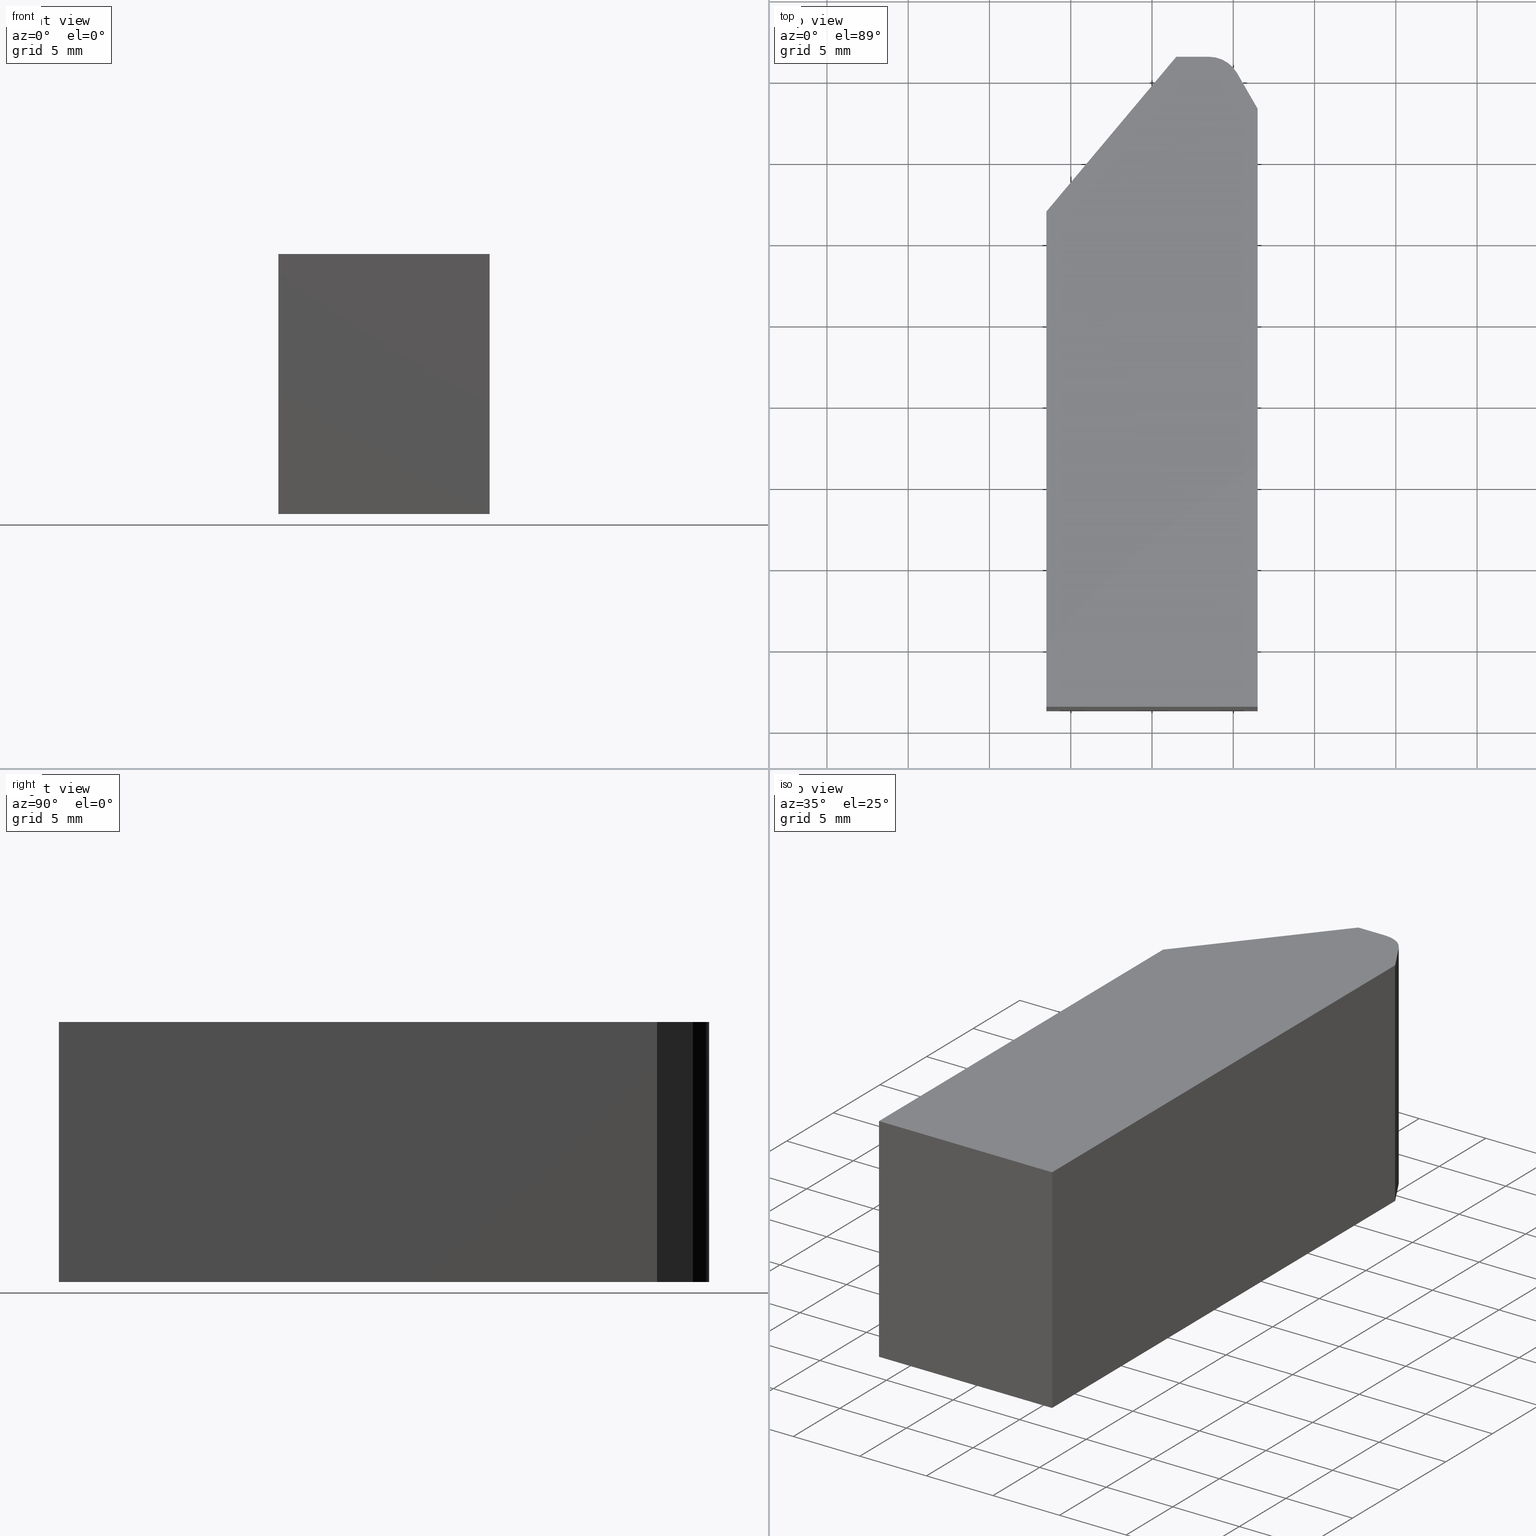
[diagram: canonical four-view strip — front | top / right | iso, engineering-drawing reading convention]
A machine part, canonical four-view strip (front | top / right | iso — engineering-drawing reading convention). The complete STEP part file that produces these views, byte-faithful:
ISO-10303-21;
HEADER;
/* Generated by software containing ST-Developer
 * from STEP Tools, Inc. (www.steptools.com) 
 */

FILE_DESCRIPTION(
/* description */ (''),
/* implementation_level */ '2;1');

FILE_NAME(
/* name */ 'E_3_01_06_07_00_WKZ-0125.stp',
/* time_stamp */ '2025-11-24T11:46:10+01:00',
/* author */ ('d.fischer'),
/* organization */ (''),
/* preprocessor_version */ 'ST-DEVELOPER v20',
/* originating_system */ 'Autodesk Inventor 2025',
/* authorisation */ '');

FILE_SCHEMA (('AUTOMOTIVE_DESIGN { 1 0 10303 214 3 1 1 }'));
ENDSEC;

DATA;
#10=MECHANICAL_DESIGN_GEOMETRIC_PRESENTATION_REPRESENTATION('',(#14,#15),
#294);
#11=SHAPE_REPRESENTATION_RELATIONSHIP('SRR','None',#301,#12);
#12=ADVANCED_BREP_SHAPE_REPRESENTATION('',(#13),#293);
#13=MANIFOLD_SOLID_BREP('Volumenk\X\F6rper1',#169);
#14=STYLED_ITEM('',(#311),#167);
#15=STYLED_ITEM('',(#310),#13);
#16=CYLINDRICAL_SURFACE('',#197,2.00000000000001);
#17=FACE_OUTER_BOUND('',#26,.T.);
#18=FACE_OUTER_BOUND('',#27,.T.);
#19=FACE_OUTER_BOUND('',#28,.T.);
#20=FACE_OUTER_BOUND('',#29,.T.);
#21=FACE_OUTER_BOUND('',#30,.T.);
#22=FACE_OUTER_BOUND('',#31,.T.);
#23=FACE_OUTER_BOUND('',#32,.T.);
#24=FACE_OUTER_BOUND('',#33,.T.);
#25=FACE_OUTER_BOUND('',#34,.T.);
#26=EDGE_LOOP('',(#110,#111,#112,#113,#114,#115,#116));
#27=EDGE_LOOP('',(#117,#118,#119,#120));
#28=EDGE_LOOP('',(#121,#122,#123,#124));
#29=EDGE_LOOP('',(#125,#126,#127,#128));
#30=EDGE_LOOP('',(#129,#130,#131,#132));
#31=EDGE_LOOP('',(#133,#134,#135,#136));
#32=EDGE_LOOP('',(#137,#138,#139,#140));
#33=EDGE_LOOP('',(#141,#142,#143,#144));
#34=EDGE_LOOP('',(#145,#146,#147,#148,#149,#150,#151));
#35=CIRCLE('',#193,2.00000000000001);
#36=CIRCLE('',#198,2.00000000000001);
#37=LINE('',#250,#56);
#38=LINE('',#252,#57);
#39=LINE('',#254,#58);
#40=LINE('',#256,#59);
#41=LINE('',#260,#60);
#42=LINE('',#261,#61);
#43=LINE('',#265,#62);
#44=LINE('',#266,#63);
#45=LINE('',#267,#64);
#46=LINE('',#270,#65);
#47=LINE('',#271,#66);
#48=LINE('',#274,#67);
#49=LINE('',#275,#68);
#50=LINE('',#279,#69);
#51=LINE('',#282,#70);
#52=LINE('',#283,#71);
#53=LINE('',#286,#72);
#54=LINE('',#287,#73);
#55=LINE('',#289,#74);
#56=VECTOR('',#207,10.);
#57=VECTOR('',#208,10.);
#58=VECTOR('',#209,10.);
#59=VECTOR('',#210,10.);
#60=VECTOR('',#213,10.);
#61=VECTOR('',#214,10.);
#62=VECTOR('',#217,10.);
#63=VECTOR('',#218,10.);
#64=VECTOR('',#219,10.);
#65=VECTOR('',#222,10.);
#66=VECTOR('',#223,10.);
#67=VECTOR('',#226,10.);
#68=VECTOR('',#227,10.);
#69=VECTOR('',#232,10.);
#70=VECTOR('',#235,10.);
#71=VECTOR('',#236,10.);
#72=VECTOR('',#239,10.);
#73=VECTOR('',#240,10.);
#74=VECTOR('',#243,10.);
#75=VERTEX_POINT('',#248);
#76=VERTEX_POINT('',#249);
#77=VERTEX_POINT('',#251);
#78=VERTEX_POINT('',#253);
#79=VERTEX_POINT('',#255);
#80=VERTEX_POINT('',#257);
#81=VERTEX_POINT('',#259);
#82=VERTEX_POINT('',#263);
#83=VERTEX_POINT('',#264);
#84=VERTEX_POINT('',#269);
#85=VERTEX_POINT('',#273);
#86=VERTEX_POINT('',#277);
#87=VERTEX_POINT('',#281);
#88=VERTEX_POINT('',#285);
#89=EDGE_CURVE('',#75,#76,#37,.T.);
#90=EDGE_CURVE('',#77,#75,#38,.T.);
#91=EDGE_CURVE('',#78,#77,#39,.T.);
#92=EDGE_CURVE('',#79,#78,#40,.T.);
#93=EDGE_CURVE('',#80,#79,#35,.T.);
#94=EDGE_CURVE('',#81,#80,#41,.T.);
#95=EDGE_CURVE('',#76,#81,#42,.T.);
#96=EDGE_CURVE('',#82,#83,#43,.T.);
#97=EDGE_CURVE('',#83,#77,#44,.T.);
#98=EDGE_CURVE('',#82,#75,#45,.T.);
#99=EDGE_CURVE('',#83,#84,#46,.T.);
#100=EDGE_CURVE('',#84,#78,#47,.T.);
#101=EDGE_CURVE('',#84,#85,#48,.T.);
#102=EDGE_CURVE('',#85,#79,#49,.T.);
#103=EDGE_CURVE('',#85,#86,#36,.T.);
#104=EDGE_CURVE('',#86,#80,#50,.T.);
#105=EDGE_CURVE('',#86,#87,#51,.T.);
#106=EDGE_CURVE('',#87,#81,#52,.T.);
#107=EDGE_CURVE('',#87,#88,#53,.T.);
#108=EDGE_CURVE('',#88,#76,#54,.T.);
#109=EDGE_CURVE('',#88,#82,#55,.T.);
#110=ORIENTED_EDGE('',*,*,#89,.F.);
#111=ORIENTED_EDGE('',*,*,#90,.F.);
#112=ORIENTED_EDGE('',*,*,#91,.F.);
#113=ORIENTED_EDGE('',*,*,#92,.F.);
#114=ORIENTED_EDGE('',*,*,#93,.F.);
#115=ORIENTED_EDGE('',*,*,#94,.F.);
#116=ORIENTED_EDGE('',*,*,#95,.F.);
#117=ORIENTED_EDGE('',*,*,#96,.T.);
#118=ORIENTED_EDGE('',*,*,#97,.T.);
#119=ORIENTED_EDGE('',*,*,#90,.T.);
#120=ORIENTED_EDGE('',*,*,#98,.F.);
#121=ORIENTED_EDGE('',*,*,#99,.T.);
#122=ORIENTED_EDGE('',*,*,#100,.T.);
#123=ORIENTED_EDGE('',*,*,#91,.T.);
#124=ORIENTED_EDGE('',*,*,#97,.F.);
#125=ORIENTED_EDGE('',*,*,#101,.T.);
#126=ORIENTED_EDGE('',*,*,#102,.T.);
#127=ORIENTED_EDGE('',*,*,#92,.T.);
#128=ORIENTED_EDGE('',*,*,#100,.F.);
#129=ORIENTED_EDGE('',*,*,#103,.T.);
#130=ORIENTED_EDGE('',*,*,#104,.T.);
#131=ORIENTED_EDGE('',*,*,#93,.T.);
#132=ORIENTED_EDGE('',*,*,#102,.F.);
#133=ORIENTED_EDGE('',*,*,#105,.T.);
#134=ORIENTED_EDGE('',*,*,#106,.T.);
#135=ORIENTED_EDGE('',*,*,#94,.T.);
#136=ORIENTED_EDGE('',*,*,#104,.F.);
#137=ORIENTED_EDGE('',*,*,#107,.T.);
#138=ORIENTED_EDGE('',*,*,#108,.T.);
#139=ORIENTED_EDGE('',*,*,#95,.T.);
#140=ORIENTED_EDGE('',*,*,#106,.F.);
#141=ORIENTED_EDGE('',*,*,#109,.T.);
#142=ORIENTED_EDGE('',*,*,#98,.T.);
#143=ORIENTED_EDGE('',*,*,#89,.T.);
#144=ORIENTED_EDGE('',*,*,#108,.F.);
#145=ORIENTED_EDGE('',*,*,#96,.F.);
#146=ORIENTED_EDGE('',*,*,#109,.F.);
#147=ORIENTED_EDGE('',*,*,#107,.F.);
#148=ORIENTED_EDGE('',*,*,#105,.F.);
#149=ORIENTED_EDGE('',*,*,#103,.F.);
#150=ORIENTED_EDGE('',*,*,#101,.F.);
#151=ORIENTED_EDGE('',*,*,#99,.F.);
#152=PLANE('',#192);
#153=PLANE('',#194);
#154=PLANE('',#195);
#155=PLANE('',#196);
#156=PLANE('',#199);
#157=PLANE('',#200);
#158=PLANE('',#201);
#159=PLANE('',#202);
#160=ADVANCED_FACE('',(#17),#152,.F.);
#161=ADVANCED_FACE('',(#18),#153,.T.);
#162=ADVANCED_FACE('',(#19),#154,.T.);
#163=ADVANCED_FACE('',(#20),#155,.T.);
#164=ADVANCED_FACE('',(#21),#16,.T.);
#165=ADVANCED_FACE('',(#22),#156,.T.);
#166=ADVANCED_FACE('',(#23),#157,.T.);
#167=ADVANCED_FACE('',(#24),#158,.T.);
#168=ADVANCED_FACE('',(#25),#159,.T.);
#169=CLOSED_SHELL('',(#160,#161,#162,#163,#164,#165,#166,#167,#168));
#170=DERIVED_UNIT_ELEMENT(#173,1.);
#171=DERIVED_UNIT_ELEMENT(#296,-3.);
#172=DIMENSIONAL_EXPONENTS(0.,1.,0.,0.,0.,0.,0.);
#173=(
CONVERSION_BASED_UNIT('gram',#175)
MASS_UNIT()
NAMED_UNIT(#172)
);
#174=(
MASS_UNIT()
NAMED_UNIT(*)
SI_UNIT(.KILO.,.GRAM.)
);
#175=MASS_MEASURE_WITH_UNIT(MASS_MEASURE(0.001),#174);
#176=DERIVED_UNIT((#170,#171));
#177=MEASURE_REPRESENTATION_ITEM('density measure',
POSITIVE_RATIO_MEASURE(8.03),#176);
#178=PROPERTY_DEFINITION_REPRESENTATION(#183,#180);
#179=PROPERTY_DEFINITION_REPRESENTATION(#184,#181);
#180=REPRESENTATION('material name',(#182),#293);
#181=REPRESENTATION('density',(#177),#293);
#182=DESCRIPTIVE_REPRESENTATION_ITEM('1.4301','1.4301');
#183=PROPERTY_DEFINITION('material property','material name',#303);
#184=PROPERTY_DEFINITION('material property','density of part',#303);
#185=DATE_TIME_ROLE('creation_date');
#186=APPLIED_DATE_AND_TIME_ASSIGNMENT(#187,#185,(#303));
#187=DATE_AND_TIME(#188,#189);
#188=CALENDAR_DATE(2011,18,10);
#189=LOCAL_TIME(0,0,0.,#190);
#190=COORDINATED_UNIVERSAL_TIME_OFFSET(0,0,.BEHIND.);
#191=AXIS2_PLACEMENT_3D('',#246,#203,#204);
#192=AXIS2_PLACEMENT_3D('',#247,#205,#206);
#193=AXIS2_PLACEMENT_3D('',#258,#211,#212);
#194=AXIS2_PLACEMENT_3D('',#262,#215,#216);
#195=AXIS2_PLACEMENT_3D('',#268,#220,#221);
#196=AXIS2_PLACEMENT_3D('',#272,#224,#225);
#197=AXIS2_PLACEMENT_3D('',#276,#228,#229);
#198=AXIS2_PLACEMENT_3D('',#278,#230,#231);
#199=AXIS2_PLACEMENT_3D('',#280,#233,#234);
#200=AXIS2_PLACEMENT_3D('',#284,#237,#238);
#201=AXIS2_PLACEMENT_3D('',#288,#241,#242);
#202=AXIS2_PLACEMENT_3D('',#290,#244,#245);
#203=DIRECTION('axis',(0.,0.,1.));
#204=DIRECTION('refdir',(1.,0.,0.));
#205=DIRECTION('center_axis',(0.,0.,1.));
#206=DIRECTION('ref_axis',(1.,0.,0.));
#207=DIRECTION('',(1.,-3.00545187904787E-15,0.));
#208=DIRECTION('',(2.18619565072233E-16,-1.,0.));
#209=DIRECTION('',(-0.642787609686539,-0.766044443118978,0.));
#210=DIRECTION('',(-1.,0.,0.));
#211=DIRECTION('center_axis',(0.,0.,1.));
#212=DIRECTION('ref_axis',(-0.866025403784439,-0.5,0.));
#213=DIRECTION('',(-0.499999999999999,0.866025403784439,0.));
#214=DIRECTION('',(1.50853749567614E-16,1.,0.));
#215=DIRECTION('center_axis',(-1.,-2.18619565072233E-16,0.));
#216=DIRECTION('ref_axis',(0.,0.,1.));
#217=DIRECTION('',(-2.18619565072233E-16,1.,0.));
#218=DIRECTION('',(0.,0.,-1.));
#219=DIRECTION('',(0.,0.,-1.));
#220=DIRECTION('center_axis',(-0.766044443118978,0.642787609686539,0.));
#221=DIRECTION('ref_axis',(0.,0.,1.));
#222=DIRECTION('',(0.642787609686539,0.766044443118978,0.));
#223=DIRECTION('',(0.,0.,-1.));
#224=DIRECTION('center_axis',(0.,1.,0.));
#225=DIRECTION('ref_axis',(0.,0.,1.));
#226=DIRECTION('',(1.,0.,0.));
#227=DIRECTION('',(0.,0.,-1.));
#228=DIRECTION('center_axis',(0.,0.,1.));
#229=DIRECTION('ref_axis',(-0.866025403784439,-0.5,0.));
#230=DIRECTION('center_axis',(0.,0.,-1.));
#231=DIRECTION('ref_axis',(-0.866025403784439,-0.5,0.));
#232=DIRECTION('',(0.,0.,-1.));
#233=DIRECTION('center_axis',(0.866025403784439,0.499999999999999,0.));
#234=DIRECTION('ref_axis',(0.,0.,-1.));
#235=DIRECTION('',(0.499999999999999,-0.866025403784439,0.));
#236=DIRECTION('',(0.,0.,-1.));
#237=DIRECTION('center_axis',(1.,-1.50853749567614E-16,0.));
#238=DIRECTION('ref_axis',(0.,0.,-1.));
#239=DIRECTION('',(-1.50853749567614E-16,-1.,0.));
#240=DIRECTION('',(0.,0.,-1.));
#241=DIRECTION('center_axis',(3.85414216364287E-16,-1.,0.));
#242=DIRECTION('ref_axis',(0.,0.,-1.));
#243=DIRECTION('',(-1.,-3.85414216364287E-16,0.));
#244=DIRECTION('center_axis',(0.,0.,1.));
#245=DIRECTION('ref_axis',(1.,0.,0.));
#246=CARTESIAN_POINT('',(0.,0.,0.));
#247=CARTESIAN_POINT('Origin',(0.394768987886831,4.85101726977802,-8.));
#248=CARTESIAN_POINT('',(-6.5,-13.6599409950749,-8.));
#249=CARTESIAN_POINT('',(6.5,-13.6599409950749,-8.));
#250=CARTESIAN_POINT('',(6.5,-13.6599409950749,-8.));
#251=CARTESIAN_POINT('',(-6.5,16.8100590049251,-8.));
#252=CARTESIAN_POINT('',(-6.5,-13.6599409950749,-8.));
#253=CARTESIAN_POINT('',(1.49661948511947,26.3400590049251,-8.));
#254=CARTESIAN_POINT('',(-6.5,16.8100590049251,-8.));
#255=CARTESIAN_POINT('',(3.49661948511947,26.3400590049251,-8.));
#256=CARTESIAN_POINT('',(1.49661948511947,26.3400590049251,-8.));
#257=CARTESIAN_POINT('',(5.22867029268835,25.3400590049251,-8.));
#258=CARTESIAN_POINT('Origin',(3.49661948511947,24.3400590049251,-8.));
#259=CARTESIAN_POINT('',(6.5,23.1380513586897,-8.));
#260=CARTESIAN_POINT('',(5.22867029268835,25.3400590049251,-8.));
#261=CARTESIAN_POINT('',(6.5,23.1380513586897,-8.));
#262=CARTESIAN_POINT('Origin',(-6.5,-13.6599409950749,0.));
#263=CARTESIAN_POINT('',(-6.5,-13.6599409950749,8.));
#264=CARTESIAN_POINT('',(-6.5,16.8100590049251,8.));
#265=CARTESIAN_POINT('',(-6.5,-13.6599409950749,8.));
#266=CARTESIAN_POINT('',(-6.5,16.8100590049251,0.));
#267=CARTESIAN_POINT('',(-6.5,-13.6599409950749,0.));
#268=CARTESIAN_POINT('Origin',(-6.5,16.8100590049251,0.));
#269=CARTESIAN_POINT('',(1.49661948511947,26.3400590049251,8.));
#270=CARTESIAN_POINT('',(-6.5,16.8100590049251,8.));
#271=CARTESIAN_POINT('',(1.49661948511947,26.3400590049251,0.));
#272=CARTESIAN_POINT('Origin',(1.49661948511947,26.3400590049251,0.));
#273=CARTESIAN_POINT('',(3.49661948511947,26.3400590049251,8.));
#274=CARTESIAN_POINT('',(1.49661948511947,26.3400590049251,8.));
#275=CARTESIAN_POINT('',(3.49661948511947,26.3400590049251,0.));
#276=CARTESIAN_POINT('Origin',(3.49661948511947,24.3400590049251,0.));
#277=CARTESIAN_POINT('',(5.22867029268835,25.3400590049251,8.));
#278=CARTESIAN_POINT('Origin',(3.49661948511947,24.3400590049251,8.));
#279=CARTESIAN_POINT('',(5.22867029268835,25.3400590049251,0.));
#280=CARTESIAN_POINT('Origin',(5.22867029268835,25.3400590049251,0.));
#281=CARTESIAN_POINT('',(6.5,23.1380513586897,8.));
#282=CARTESIAN_POINT('',(5.22867029268835,25.3400590049251,8.));
#283=CARTESIAN_POINT('',(6.5,23.1380513586897,0.));
#284=CARTESIAN_POINT('Origin',(6.5,23.1380513586897,0.));
#285=CARTESIAN_POINT('',(6.5,-13.6599409950749,8.));
#286=CARTESIAN_POINT('',(6.5,23.1380513586897,8.));
#287=CARTESIAN_POINT('',(6.5,-13.6599409950749,0.));
#288=CARTESIAN_POINT('Origin',(5.02238788800455,-13.6599409950749,0.));
#289=CARTESIAN_POINT('',(5.02238788800455,-13.6599409950749,8.));
#290=CARTESIAN_POINT('Origin',(0.394768987886831,4.85101726977802,8.));
#291=UNCERTAINTY_MEASURE_WITH_UNIT(LENGTH_MEASURE(0.01),#295,
'DISTANCE_ACCURACY_VALUE',
'Maximum model space distance between geometric entities at asserted c
onnectivities');
#292=UNCERTAINTY_MEASURE_WITH_UNIT(LENGTH_MEASURE(0.01),#295,
'DISTANCE_ACCURACY_VALUE',
'Maximum model space distance between geometric entities at asserted c
onnectivities');
#293=(
GEOMETRIC_REPRESENTATION_CONTEXT(3)
GLOBAL_UNCERTAINTY_ASSIGNED_CONTEXT((#291))
GLOBAL_UNIT_ASSIGNED_CONTEXT((#295,#297,#298))
REPRESENTATION_CONTEXT('','3D')
);
#294=(
GEOMETRIC_REPRESENTATION_CONTEXT(3)
GLOBAL_UNCERTAINTY_ASSIGNED_CONTEXT((#292))
GLOBAL_UNIT_ASSIGNED_CONTEXT((#295,#297,#298))
REPRESENTATION_CONTEXT('','3D')
);
#295=(
LENGTH_UNIT()
NAMED_UNIT(*)
SI_UNIT(.MILLI.,.METRE.)
);
#296=(
LENGTH_UNIT()
NAMED_UNIT(*)
SI_UNIT(.CENTI.,.METRE.)
);
#297=(
NAMED_UNIT(*)
PLANE_ANGLE_UNIT()
SI_UNIT($,.RADIAN.)
);
#298=(
NAMED_UNIT(*)
SI_UNIT($,.STERADIAN.)
SOLID_ANGLE_UNIT()
);
#299=SHAPE_DEFINITION_REPRESENTATION(#300,#301);
#300=PRODUCT_DEFINITION_SHAPE('',$,#303);
#301=SHAPE_REPRESENTATION('',(#191),#293);
#302=PRODUCT_DEFINITION_CONTEXT('part definition',#307,'design');
#303=PRODUCT_DEFINITION('WKZ-0125','E_3_01_06_07_00_WKZ-0125',#304,#302);
#304=PRODUCT_DEFINITION_FORMATION('',$,#309);
#305=PRODUCT_RELATED_PRODUCT_CATEGORY('E_3_01_06_07_00_WKZ-0125',
'E_3_01_06_07_00_WKZ-0125',(#309));
#306=APPLICATION_PROTOCOL_DEFINITION('international standard',
'automotive_design',2009,#307);
#307=APPLICATION_CONTEXT(
'Core Data for Automotive Mechanical Design Process');
#308=PRODUCT_CONTEXT('part definition',#307,'mechanical');
#309=PRODUCT('WKZ-0125','E_3_01_06_07_00_WKZ-0125',$,(#308));
#310=PRESENTATION_STYLE_ASSIGNMENT((#312));
#311=PRESENTATION_STYLE_ASSIGNMENT((#313));
#312=SURFACE_STYLE_USAGE(.BOTH.,#316);
#313=SURFACE_STYLE_USAGE(.BOTH.,#317);
#314=SURFACE_STYLE_RENDERING_WITH_PROPERTIES($,#324,(#315));
#315=SURFACE_STYLE_TRANSPARENT(0.);
#316=SURFACE_SIDE_STYLE('',(#318,#314));
#317=SURFACE_SIDE_STYLE('',(#319));
#318=SURFACE_STYLE_FILL_AREA(#320);
#319=SURFACE_STYLE_FILL_AREA(#321);
#320=FILL_AREA_STYLE('',(#322));
#321=FILL_AREA_STYLE('',(#323));
#322=FILL_AREA_STYLE_COLOUR('',#324);
#323=FILL_AREA_STYLE_COLOUR('',#325);
#324=COLOUR_RGB('',0.92156862745098,0.92156862745098,0.92156862745098);
#325=COLOUR_RGB('',0.16078431372549,0.16078431372549,0.16078431372549);
ENDSEC;
END-ISO-10303-21;
